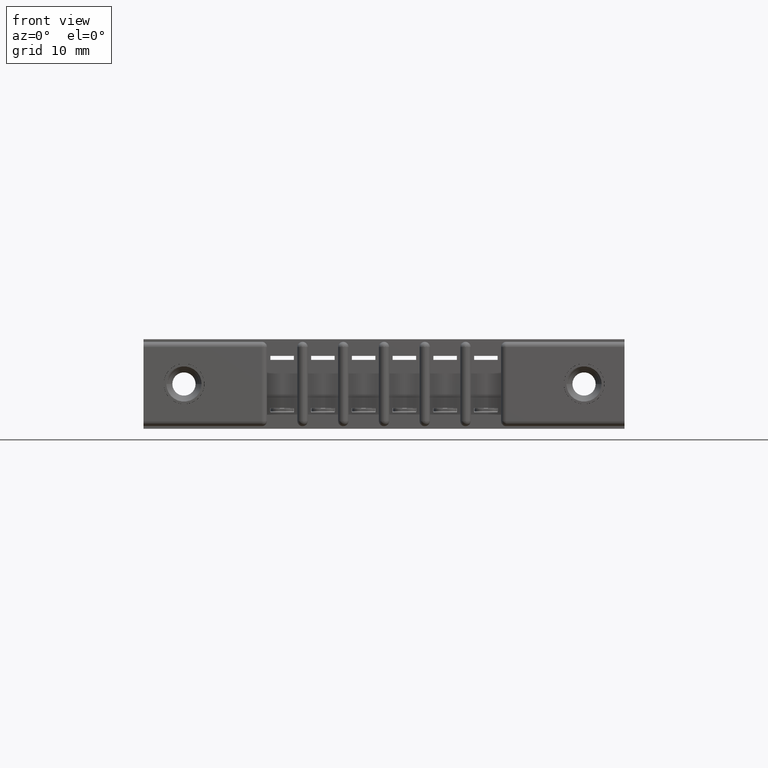
[diagram: clean part render]
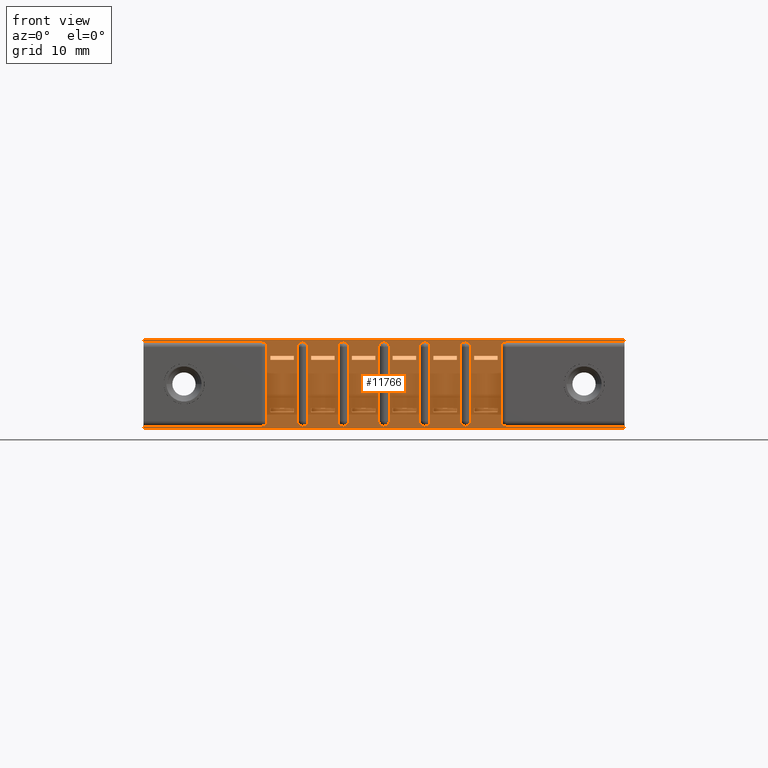
[diagram: same view with one face highlighted and labeled with its STEP entity id]
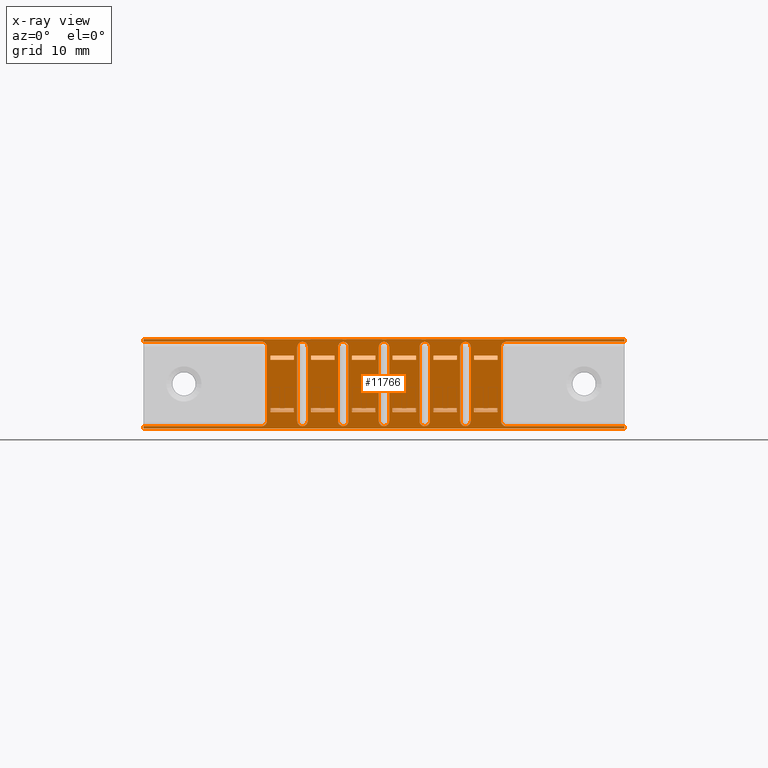
[diagram: x-ray of the same camera — body ghosted, the highlighted face saturated]
A machine part, front view. The second image highlights one B-rep face of the part: STEP entity #11766.
The next image is the same camera in x-ray: the body ghosted, the highlighted face saturated — about 0% of this face is hidden behind the body in this view.
In plain terms, the highlighted planar face has unit normal (0, 1, 0).
Its self-contained STEP definition (entity closure, byte-faithful):
#7 = ORIENTED_EDGE ( 'NONE', *, *, #4818, .T. ) ;
#30 = EDGE_CURVE ( 'NONE', #8263, #10654, #2794, .T. ) ;
#53 = ORIENTED_EDGE ( 'NONE', *, *, #9974, .F. ) ;
#56 = AXIS2_PLACEMENT_3D ( 'NONE', #10852, #10772, #778 ) ;
#74 = VERTEX_POINT ( 'NONE', #822 ) ;
#80 = VERTEX_POINT ( 'NONE', #3491 ) ;
#112 = CARTESIAN_POINT ( 'NONE',  ( 1.232999999999999700, 0.05099999999999999700, -0.3329999999999999600 ) ) ;
#133 = VERTEX_POINT ( 'NONE', #2409 ) ;
#159 = VECTOR ( 'NONE', #6698, 39.37007874015748100 ) ;
#173 = AXIS2_PLACEMENT_3D ( 'NONE', #6417, #6575, #909 ) ;
#174 = VECTOR ( 'NONE', #5992, 39.37007874015748100 ) ;
#191 = CARTESIAN_POINT ( 'NONE',  ( 1.200000000000000400, 0.05099999999999999700, -0.07900000000000009800 ) ) ;
#196 = FACE_BOUND ( 'NONE', #7737, .T. ) ;
#206 = LINE ( 'NONE', #6383, #1787 ) ;
#238 = ORIENTED_EDGE ( 'NONE', *, *, #5355, .T. ) ;
#261 = CARTESIAN_POINT ( 'NONE',  ( 0.7980000000000003800, 0.05099999999999999700, -0.07900000000000009800 ) ) ;
#281 = CARTESIAN_POINT ( 'NONE',  ( 1.356000000000000500, 0.05100000000000001800, -0.06399999999999989000 ) ) ;
#326 = DIRECTION ( 'NONE',  ( 1.000000000000000000, 0.0000000000000000000, 0.0000000000000000000 ) ) ;
#344 = ORIENTED_EDGE ( 'NONE', *, *, #4937, .F. ) ;
#347 = VERTEX_POINT ( 'NONE', #8597 ) ;
#348 = CARTESIAN_POINT ( 'NONE',  ( 0.8880000000000004600, 0.05099999999999999700, -0.2640000000000001200 ) ) ;
#375 = CARTESIAN_POINT ( 'NONE',  ( 0.9010000000000005800, 0.05099999999999999700, -0.3430000000000001400 ) ) ;
#392 = VECTOR ( 'NONE', #8124, 39.37007874015748100 ) ;
#396 = CARTESIAN_POINT ( 'NONE',  ( 0.7649999999999999000, 0.05099999999999999700, -0.3130000000000007200 ) ) ;
#415 = AXIS2_PLACEMENT_3D ( 'NONE', #5095, #9637, #5053 ) ;
#420 = CARTESIAN_POINT ( 'NONE',  ( 0.7320000000000004300, 0.05099999999999999700, -0.2640000000000001200 ) ) ;
#427 = CARTESIAN_POINT ( 'NONE',  ( 1.232999999999999700, 0.05099999999999999700, -0.3130000000000007200 ) ) ;
#429 = DIRECTION ( 'NONE',  ( -1.000000000000000000, 0.0000000000000000000, 1.897116662266849500E-016 ) ) ;
#453 = CARTESIAN_POINT ( 'NONE',  ( 0.5760000000000004000, 0.05099999999999999700, -0.06400000000000014000 ) ) ;
#491 = CARTESIAN_POINT ( 'NONE',  ( 1.110000000000000500, 0.05099999999999999700, -0.2790000000000001400 ) ) ;
#502 = CARTESIAN_POINT ( 'NONE',  ( 0.5760000000000004000, 0.05099999999999999700, -0.07900000000000009800 ) ) ;
#509 = DIRECTION ( 'NONE',  ( 0.0000000000000000000, 0.0000000000000000000, 1.000000000000000000 ) ) ;
#531 = CARTESIAN_POINT ( 'NONE',  ( 0.7320000000000004300, 0.05099999999999999700, -0.06400000000000014000 ) ) ;
#539 = VECTOR ( 'NONE', #5408, 39.37007874015748100 ) ;
#547 = LINE ( 'NONE', #5838, #5756 ) ;
#552 = CIRCLE ( 'NONE', #11771, 0.01999999999999924100 ) ;
#558 = CARTESIAN_POINT ( 'NONE',  ( 1.200000000000000400, 0.05099999999999999700, -0.2790000000000000800 ) ) ;
#563 = ORIENTED_EDGE ( 'NONE', *, *, #8171, .T. ) ;
#577 = VECTOR ( 'NONE', #10922, 39.37007874015748100 ) ;
#579 = CARTESIAN_POINT ( 'NONE',  ( 0.5760000000000004000, 0.05099999999999999700, -0.2790000000000001400 ) ) ;
#606 = EDGE_CURVE ( 'NONE', #8623, #2721, #5686, .T. ) ;
#610 = CIRCLE ( 'NONE', #2261, 0.01999999999999924100 ) ;
#622 = CARTESIAN_POINT ( 'NONE',  ( 1.232999999999999700, 0.05099999999999999700, -0.02999999999999930500 ) ) ;
#624 = LINE ( 'NONE', #7322, #4806 ) ;
#632 = FACE_BOUND ( 'NONE', #10209, .T. ) ;
#683 = CIRCLE ( 'NONE', #4127, 0.01999999999999924100 ) ;
#702 = VERTEX_POINT ( 'NONE', #9075 ) ;
#736 = DIRECTION ( 'NONE',  ( -0.0000000000000000000, -1.000000000000000000, 0.0000000000000000000 ) ) ;
#745 = ORIENTED_EDGE ( 'NONE', *, *, #5326, .F. ) ;
#773 = CARTESIAN_POINT ( 'NONE',  ( 0.6290000000000003400, 0.05099999999999999700, -0.3130000000000007200 ) ) ;
#778 = DIRECTION ( 'NONE',  ( 0.0000000000000000000, 0.0000000000000000000, 1.000000000000000000 ) ) ;
#822 = CARTESIAN_POINT ( 'NONE',  ( 0.6420000000000004600, 0.05099999999999999700, -0.06399999999999989000 ) ) ;
#829 = LINE ( 'NONE', #8462, #5743 ) ;
#848 = CARTESIAN_POINT ( 'NONE',  ( 1.056999999999999700, 0.05099999999999999700, -0.02999999999999927000 ) ) ;
#868 = VERTEX_POINT ( 'NONE', #5557 ) ;
#871 = LINE ( 'NONE', #2761, #9851 ) ;
#877 = EDGE_CURVE ( 'NONE', #4252, #1716, #7116, .T. ) ;
#883 = VECTOR ( 'NONE', #6453, 39.37007874015748100 ) ;
#888 = DIRECTION ( 'NONE',  ( 0.0000000000000000000, 0.0000000000000000000, -1.000000000000000000 ) ) ;
#897 = CARTESIAN_POINT ( 'NONE',  ( 0.7980000000000003800, 0.05099999999999999700, -0.2790000000000001400 ) ) ;
#909 = DIRECTION ( 'NONE',  ( 0.0000000000000000000, 0.0000000000000000000, 1.000000000000000000 ) ) ;
#931 = LINE ( 'NONE', #11858, #7148 ) ;
#971 = CARTESIAN_POINT ( 'NONE',  ( 0.0000000000000000000, 0.05099999999999999700, 0.0000000000000000000 ) ) ;
#995 = CARTESIAN_POINT ( 'NONE',  ( 0.6420000000000004600, 0.05099999999999999700, -0.07900000000000009800 ) ) ;
#1010 = CARTESIAN_POINT ( 'NONE',  ( 0.8880000000000004600, 0.05099999999999999700, -0.2790000000000000800 ) ) ;
#1032 = CARTESIAN_POINT ( 'NONE',  ( 0.6420000000000004600, 0.05099999999999999700, -0.06400000000000012600 ) ) ;
#1047 = DIRECTION ( 'NONE',  ( 0.0000000000000000000, 0.0000000000000000000, -1.000000000000000000 ) ) ;
#1053 = DIRECTION ( 'NONE',  ( 0.0000000000000000000, 0.0000000000000000000, -1.000000000000000000 ) ) ;
#1066 = CARTESIAN_POINT ( 'NONE',  ( 1.369000000000000400, 0.05099999999999999700, -0.03000000000000007200 ) ) ;
#1082 = CARTESIAN_POINT ( 'NONE',  ( 1.076999999999999700, 0.05099999999999999700, -0.3130000000000007200 ) ) ;
#1094 = VERTEX_POINT ( 'NONE', #4576 ) ;
#1103 = ORIENTED_EDGE ( 'NONE', *, *, #4552, .F. ) ;
#1163 = CARTESIAN_POINT ( 'NONE',  ( 0.4530000000000003500, 0.05099999999999999700, -0.01000000000000006400 ) ) ;
#1167 = DIRECTION ( 'NONE',  ( 0.0000000000000000000, 0.0000000000000000000, -1.000000000000000000 ) ) ;
#1205 = EDGE_CURVE ( 'NONE', #8051, #11214, #2473, .T. ) ;
#1211 = ORIENTED_EDGE ( 'NONE', *, *, #5078, .T. ) ;
#1215 = EDGE_CURVE ( 'NONE', #9059, #2859, #1324, .T. ) ;
#1237 = CARTESIAN_POINT ( 'NONE',  ( 0.4860000000000004300, 0.05099999999999999700, -0.2790000000000001400 ) ) ;
#1243 = EDGE_LOOP ( 'NONE', ( #7596, #7864, #8556, #3206 ) ) ;
#1266 = DIRECTION ( 'NONE',  ( 0.0000000000000000000, 0.0000000000000000000, -1.000000000000000000 ) ) ;
#1268 = CIRCLE ( 'NONE', #3631, 0.01999999999999924100 ) ;
#1283 = VECTOR ( 'NONE', #1266, 39.37007874015748100 ) ;
#1286 = ORIENTED_EDGE ( 'NONE', *, *, #10593, .F. ) ;
#1287 = CARTESIAN_POINT ( 'NONE',  ( 1.044000000000000500, 0.05099999999999999700, -0.07900000000000009800 ) ) ;
#1322 = VECTOR ( 'NONE', #6221, 39.37007874015748100 ) ;
#1324 = LINE ( 'NONE', #4685, #6248 ) ;
#1353 = ORIENTED_EDGE ( 'NONE', *, *, #2015, .F. ) ;
#1357 = FACE_BOUND ( 'NONE', #5174, .T. ) ;
#1370 = EDGE_LOOP ( 'NONE', ( #10367, #6402, #1286, #11614, #10536 ) ) ;
#1374 = EDGE_LOOP ( 'NONE', ( #8940, #7445, #2843, #10048, #8587 ) ) ;
#1378 = EDGE_CURVE ( 'NONE', #7162, #74, #6392, .T. ) ;
#1392 = ORIENTED_EDGE ( 'NONE', *, *, #2921, .F. ) ;
#1403 = DIRECTION ( 'NONE',  ( -1.000000000000000000, 0.0000000000000000000, 0.0000000000000000000 ) ) ;
#1423 = LINE ( 'NONE', #579, #6054 ) ;
#1428 = CARTESIAN_POINT ( 'NONE',  ( 1.200000000000000400, 0.05099999999999999700, -0.2640000000000001200 ) ) ;
#1437 = EDGE_CURVE ( 'NONE', #8565, #2018, #10456, .T. ) ;
#1466 = LINE ( 'NONE', #3647, #159 ) ;
#1499 = VERTEX_POINT ( 'NONE', #8442 ) ;
#1502 = EDGE_CURVE ( 'NONE', #5835, #7595, #8986, .T. ) ;
#1548 = CARTESIAN_POINT ( 'NONE',  ( 0.9009999999999998000, 0.05099999999999999700, -0.02999999999999927000 ) ) ;
#1561 = CARTESIAN_POINT ( 'NONE',  ( 1.096999999999999800, 0.05099999999999999700, -0.02999999999999927000 ) ) ;
#1569 = LINE ( 'NONE', #4558, #9221 ) ;
#1582 = VERTEX_POINT ( 'NONE', #6736 ) ;
#1592 = VERTEX_POINT ( 'NONE', #4985 ) ;
#1595 = LINE ( 'NONE', #1974, #9417 ) ;
#1662 = VERTEX_POINT ( 'NONE', #5260 ) ;
#1691 = DIRECTION ( 'NONE',  ( -1.000000000000000000, -0.0000000000000000000, -7.017285087388212900E-023 ) ) ;
#1702 = CARTESIAN_POINT ( 'NONE',  ( 1.110000000000000500, 0.05099999999999999700, -0.06400000000000012600 ) ) ;
#1716 = VERTEX_POINT ( 'NONE', #4034 ) ;
#1736 = ORIENTED_EDGE ( 'NONE', *, *, #10774, .F. ) ;
#1756 = DIRECTION ( 'NONE',  ( 0.0000000000000000000, 0.0000000000000000000, -1.000000000000000000 ) ) ;
#1760 = VERTEX_POINT ( 'NONE', #420 ) ;
#1763 = FACE_BOUND ( 'NONE', #2626, .T. ) ;
#1777 = AXIS2_PLACEMENT_3D ( 'NONE', #11327, #8571, #1167 ) ;
#1787 = VECTOR ( 'NONE', #1794, 39.37007874015748100 ) ;
#1794 = DIRECTION ( 'NONE',  ( -1.000000000000000000, 0.0000000000000000000, 0.0000000000000000000 ) ) ;
#1853 = CARTESIAN_POINT ( 'NONE',  ( 1.266000000000000500, 0.05099999999999999700, -0.06400000000000012600 ) ) ;
#1864 = VECTOR ( 'NONE', #1053, 39.37007874015748100 ) ;
#1877 = VECTOR ( 'NONE', #10311, 39.37007874015748100 ) ;
#1883 = CARTESIAN_POINT ( 'NONE',  ( 1.253000000000000300, 0.05099999999999999700, -0.3130000000000007200 ) ) ;
#1950 = DIRECTION ( 'NONE',  ( 0.0000000000000000000, 0.0000000000000000000, -1.000000000000000000 ) ) ;
#1955 = VERTEX_POINT ( 'NONE', #2025 ) ;
#1974 = CARTESIAN_POINT ( 'NONE',  ( 0.5760000000000004000, 0.05099999999999999700, -0.2790000000000001400 ) ) ;
#1983 = EDGE_CURVE ( 'NONE', #4721, #10619, #10574, .T. ) ;
#2014 = VERTEX_POINT ( 'NONE', #7493 ) ;
#2015 = EDGE_CURVE ( 'NONE', #347, #9955, #11167, .T. ) ;
#2017 = CARTESIAN_POINT ( 'NONE',  ( 0.9209999999999998200, 0.05099999999999999700, -0.3130000000000007200 ) ) ;
#2018 = VERTEX_POINT ( 'NONE', #10424 ) ;
#2020 = ORIENTED_EDGE ( 'NONE', *, *, #4255, .F. ) ;
#2025 = CARTESIAN_POINT ( 'NONE',  ( 0.7449999999999998800, 0.05099999999999999700, -0.02999999999999927000 ) ) ;
#2026 = VERTEX_POINT ( 'NONE', #1066 ) ;
#2049 = AXIS2_PLACEMENT_3D ( 'NONE', #427, #9578, #8717 ) ;
#2051 = CARTESIAN_POINT ( 'NONE',  ( 0.9540000000000004000, 0.05099999999999999700, -0.2790000000000001400 ) ) ;
#2052 = CARTESIAN_POINT ( 'NONE',  ( 0.7980000000000003800, 0.05099999999999999700, -0.06400000000000012600 ) ) ;
#2053 = CARTESIAN_POINT ( 'NONE',  ( 0.7320000000000004300, 0.05099999999999999700, -0.06399999999999989000 ) ) ;
#2071 = VECTOR ( 'NONE', #4437, 39.37007874015748100 ) ;
#2072 = VERTEX_POINT ( 'NONE', #10127 ) ;
#2082 = DIRECTION ( 'NONE',  ( 0.0000000000000000000, 0.0000000000000000000, -1.000000000000000000 ) ) ;
#2104 = LINE ( 'NONE', #10365, #3972 ) ;
#2199 = DIRECTION ( 'NONE',  ( 0.0000000000000000000, 0.0000000000000000000, 1.000000000000000000 ) ) ;
#2204 = CARTESIAN_POINT ( 'NONE',  ( 1.110000000000000500, 0.05099999999999999700, -0.07900000000000009800 ) ) ;
#2249 = DIRECTION ( 'NONE',  ( -0.0000000000000000000, -1.000000000000000000, 0.0000000000000000000 ) ) ;
#2261 = AXIS2_PLACEMENT_3D ( 'NONE', #6110, #736, #10722 ) ;
#2266 = VECTOR ( 'NONE', #888, 39.37007874015748100 ) ;
#2288 = CIRCLE ( 'NONE', #56, 0.01999999999999924100 ) ;
#2319 = LINE ( 'NONE', #4507, #7245 ) ;
#2331 = VECTOR ( 'NONE', #8002, 39.37007874015748100 ) ;
#2332 = ORIENTED_EDGE ( 'NONE', *, *, #5932, .F. ) ;
#2369 = CARTESIAN_POINT ( 'NONE',  ( 0.9409999999999997300, 0.05099999999999999700, -0.02999999999999927000 ) ) ;
#2371 = EDGE_CURVE ( 'NONE', #3713, #2874, #5047, .T. ) ;
#2388 = DIRECTION ( 'NONE',  ( 1.592914282019977800E-015, -0.0000000000000000000, -1.000000000000000000 ) ) ;
#2409 = CARTESIAN_POINT ( 'NONE',  ( 1.356000000000000500, 0.05100000000000001800, -0.06399999999999989000 ) ) ;
#2444 = VERTEX_POINT ( 'NONE', #7108 ) ;
#2463 = VECTOR ( 'NONE', #3831, 39.37007874015748100 ) ;
#2465 = EDGE_CURVE ( 'NONE', #5700, #5750, #8107, .T. ) ;
#2466 = ORIENTED_EDGE ( 'NONE', *, *, #3673, .F. ) ;
#2473 = LINE ( 'NONE', #7199, #5824 ) ;
#2486 = VECTOR ( 'NONE', #10980, 39.37007874015748100 ) ;
#2569 = EDGE_CURVE ( 'NONE', #11919, #3724, #3328, .T. ) ;
#2568 = CARTESIAN_POINT ( 'NONE',  ( 0.9540000000000004000, 0.05099999999999999700, -0.2640000000000001200 ) ) ;
#2570 = VECTOR ( 'NONE', #4352, 39.37007874015748100 ) ;
#2575 = ORIENTED_EDGE ( 'NONE', *, *, #30, .F. ) ;
#2585 = CARTESIAN_POINT ( 'NONE',  ( 1.044000000000000500, 0.05099999999999999700, -0.06399999999999989000 ) ) ;
#2590 = EDGE_CURVE ( 'NONE', #2444, #5319, #3625, .T. ) ;
#2608 = EDGE_CURVE ( 'NONE', #80, #5479, #8965, .T. ) ;
#2609 = VERTEX_POINT ( 'NONE', #4722 ) ;
#2619 = CARTESIAN_POINT ( 'NONE',  ( 0.5889999999999998600, 0.05099999999999999700, 8.140050701370326700E-024 ) ) ;
#2623 = LINE ( 'NONE', #10606, #174 ) ;
#2626 = EDGE_LOOP ( 'NONE', ( #11088, #3674, #10802, #344 ) ) ;
#2631 = LINE ( 'NONE', #10329, #6560 ) ;
#2659 = EDGE_CURVE ( 'NONE', #4875, #8565, #3748, .T. ) ;
#2688 = ORIENTED_EDGE ( 'NONE', *, *, #7640, .F. ) ;
#2689 = CARTESIAN_POINT ( 'NONE',  ( 1.842000000000000700, 0.05099999999999999700, -0.3330000000000001300 ) ) ;
#2692 = ORIENTED_EDGE ( 'NONE', *, *, #4383, .T. ) ;
#2709 = ORIENTED_EDGE ( 'NONE', *, *, #10736, .T. ) ;
#2721 = VERTEX_POINT ( 'NONE', #8032 ) ;
#2743 = CARTESIAN_POINT ( 'NONE',  ( 0.7320000000000004300, 0.05099999999999999700, -0.07900000000000009800 ) ) ;
#2745 = DIRECTION ( 'NONE',  ( -1.000000000000000000, 0.0000000000000000000, 1.897116662266849500E-016 ) ) ;
#2755 = DIRECTION ( 'NONE',  ( 1.000000000000000000, 0.0000000000000000000, 0.0000000000000000000 ) ) ;
#2761 = CARTESIAN_POINT ( 'NONE',  ( 0.4730000000000003600, 0.05099999999999999700, -0.3430000000000001400 ) ) ;
#2764 = CARTESIAN_POINT ( 'NONE',  ( 0.4530000000000003500, 0.05099999999999999700, -0.3330000000000001300 ) ) ;
#2793 = FACE_BOUND ( 'NONE', #9304, .T. ) ;
#2794 = CIRCLE ( 'NONE', #5578, 0.01999999999999924100 ) ;
#2843 = ORIENTED_EDGE ( 'NONE', *, *, #8012, .F. ) ;
#2859 = VERTEX_POINT ( 'NONE', #9408 ) ;
#2860 = CARTESIAN_POINT ( 'NONE',  ( 0.6420000000000004600, 0.05099999999999999700, -0.06400000000000012600 ) ) ;
#2874 = VERTEX_POINT ( 'NONE', #558 ) ;
#2921 = EDGE_CURVE ( 'NONE', #1662, #6533, #5777, .T. ) ;
#2922 = VERTEX_POINT ( 'NONE', #191 ) ;
#2925 = VECTOR ( 'NONE', #3005, 39.37007874015748100 ) ;
#2951 = LINE ( 'NONE', #1032, #9160 ) ;
#2953 = CARTESIAN_POINT ( 'NONE',  ( 0.9410000000000003900, 0.05099999999999999700, -0.3430000000000001400 ) ) ;
#2956 = DIRECTION ( 'NONE',  ( 0.0000000000000000000, 0.0000000000000000000, -1.000000000000000000 ) ) ;
#2966 = VECTOR ( 'NONE', #5737, 39.37007874015748100 ) ;
#2996 = ORIENTED_EDGE ( 'NONE', *, *, #11413, .F. ) ;
#3005 = DIRECTION ( 'NONE',  ( -0.0000000000000000000, 0.0000000000000000000, 1.000000000000000000 ) ) ;
#3008 = EDGE_CURVE ( 'NONE', #6291, #2014, #9086, .T. ) ;
#3023 = CARTESIAN_POINT ( 'NONE',  ( 0.7850000000000003600, 0.05099999999999999700, -0.3430000000000001400 ) ) ;
#3062 = VECTOR ( 'NONE', #6337, 39.37007874015748100 ) ;
#3076 = ORIENTED_EDGE ( 'NONE', *, *, #7967, .F. ) ;
#3110 = CIRCLE ( 'NONE', #3440, 0.01999999999999924100 ) ;
#3120 = VERTEX_POINT ( 'NONE', #9657 ) ;
#3148 = EDGE_LOOP ( 'NONE', ( #4805, #6822, #5850, #745 ) ) ;
#3157 = EDGE_CURVE ( 'NONE', #4414, #1094, #552, .T. ) ;
#3161 = CARTESIAN_POINT ( 'NONE',  ( 0.8880000000000004600, 0.05099999999999999700, -0.06400000000000014000 ) ) ;
#3199 = CARTESIAN_POINT ( 'NONE',  ( 0.0000000000000000000, 0.05099999999999999700, -0.3330000000000001300 ) ) ;
#3200 = CIRCLE ( 'NONE', #11157, 0.01999999999999924100 ) ;
#3206 = ORIENTED_EDGE ( 'NONE', *, *, #2371, .F. ) ;
#3246 = EDGE_CURVE ( 'NONE', #5319, #10863, #8095, .T. ) ;
#3248 = ORIENTED_EDGE ( 'NONE', *, *, #4100, .T. ) ;
#3249 = DIRECTION ( 'NONE',  ( -1.000000000000000000, 0.0000000000000000000, 1.897116662266849500E-016 ) ) ;
#3283 = ORIENTED_EDGE ( 'NONE', *, *, #1502, .F. ) ;
#3298 = CARTESIAN_POINT ( 'NONE',  ( 1.253000000000000300, 0.05099999999999999700, -0.3430000000000001400 ) ) ;
#3319 = DIRECTION ( 'NONE',  ( -0.0000000000000000000, 0.0000000000000000000, 1.000000000000000000 ) ) ;
#3328 = LINE ( 'NONE', #9357, #7368 ) ;
#3330 = DIRECTION ( 'NONE',  ( 1.000000000000000000, 0.0000000000000000000, 0.0000000000000000000 ) ) ;
#3347 = DIRECTION ( 'NONE',  ( 0.0000000000000000000, 0.0000000000000000000, -1.000000000000000000 ) ) ;
#3349 = CIRCLE ( 'NONE', #6028, 0.02000000000000005900 ) ;
#3381 = DIRECTION ( 'NONE',  ( -0.0000000000000000000, -1.000000000000000000, 0.0000000000000000000 ) ) ;
#3389 = VERTEX_POINT ( 'NONE', #11928 ) ;
#3394 = LINE ( 'NONE', #9159, #8030 ) ;
#3418 = ORIENTED_EDGE ( 'NONE', *, *, #11531, .F. ) ;
#3424 = LINE ( 'NONE', #9702, #8780 ) ;
#3440 = AXIS2_PLACEMENT_3D ( 'NONE', #10446, #6709, #4883 ) ;
#3468 = DIRECTION ( 'NONE',  ( -1.000000000000000000, 0.0000000000000000000, 0.0000000000000000000 ) ) ;
#3469 = VERTEX_POINT ( 'NONE', #5711 ) ;
#3491 = CARTESIAN_POINT ( 'NONE',  ( 0.9540000000000004000, 0.05099999999999999700, -0.06399999999999989000 ) ) ;
#3500 = EDGE_LOOP ( 'NONE', ( #2332, #2996, #5940, #4007 ) ) ;
#3506 = VECTOR ( 'NONE', #3249, 39.37007874015748100 ) ;
#3531 = FACE_BOUND ( 'NONE', #3500, .T. ) ;
#3538 = DIRECTION ( 'NONE',  ( -0.0000000000000000000, 0.0000000000000000000, 1.000000000000000000 ) ) ;
#3555 = DIRECTION ( 'NONE',  ( -0.0000000000000000000, 0.0000000000000000000, 1.000000000000000000 ) ) ;
#3618 = DIRECTION ( 'NONE',  ( -1.991142852524972300E-015, 0.0000000000000000000, 1.000000000000000000 ) ) ;
#3625 = LINE ( 'NONE', #2052, #1864 ) ;
#3631 = AXIS2_PLACEMENT_3D ( 'NONE', #11540, #9671, #5983 ) ;
#3645 = DIRECTION ( 'NONE',  ( -0.0000000000000000000, 0.0000000000000000000, 1.000000000000000000 ) ) ;
#3647 = CARTESIAN_POINT ( 'NONE',  ( 1.213000000000000500, 0.05099999999999999700, -0.3430000000000001400 ) ) ;
#3652 = AXIS2_PLACEMENT_3D ( 'NONE', #4003, #10477, #8763 ) ;
#3671 = LINE ( 'NONE', #6473, #8723 ) ;
#3673 = EDGE_CURVE ( 'NONE', #4820, #7055, #8670, .T. ) ;
#3674 = ORIENTED_EDGE ( 'NONE', *, *, #1215, .F. ) ;
#3686 = AXIS2_PLACEMENT_3D ( 'NONE', #2017, #11387, #4939 ) ;
#3695 = CIRCLE ( 'NONE', #6066, 0.01999999999999924100 ) ;
#3713 = VERTEX_POINT ( 'NONE', #491 ) ;
#3724 = VERTEX_POINT ( 'NONE', #6033 ) ;
#3748 = CIRCLE ( 'NONE', #7243, 0.02000000000000007000 ) ;
#3758 = ORIENTED_EDGE ( 'NONE', *, *, #10530, .F. ) ;
#3772 = EDGE_CURVE ( 'NONE', #5000, #4450, #1423, .T. ) ;
#3817 = ORIENTED_EDGE ( 'NONE', *, *, #9162, .F. ) ;
#3825 = ORIENTED_EDGE ( 'NONE', *, *, #1437, .T. ) ;
#3827 = DIRECTION ( 'NONE',  ( -1.000000000000000000, 0.0000000000000000000, 0.0000000000000000000 ) ) ;
#3831 = DIRECTION ( 'NONE',  ( 1.000000000000000000, 0.0000000000000000000, 0.0000000000000000000 ) ) ;
#3837 = DIRECTION ( 'NONE',  ( -0.0000000000000000000, -1.000000000000000000, 0.0000000000000000000 ) ) ;
#3851 = CARTESIAN_POINT ( 'NONE',  ( 0.9540000000000004000, 0.05099999999999999700, -0.06400000000000012600 ) ) ;
#3864 = EDGE_CURVE ( 'NONE', #9459, #4414, #5764, .T. ) ;
#3883 = EDGE_LOOP ( 'NONE', ( #10669, #3758, #1392, #2688 ) ) ;
#3924 = EDGE_CURVE ( 'NONE', #10072, #702, #10125, .T. ) ;
#3938 = EDGE_CURVE ( 'NONE', #10291, #10691, #2288, .T. ) ;
#3943 = VECTOR ( 'NONE', #6071, 39.37007874015748100 ) ;
#3972 = VECTOR ( 'NONE', #9253, 39.37007874015748100 ) ;
#3979 = ORIENTED_EDGE ( 'NONE', *, *, #4678, .T. ) ;
#4003 = CARTESIAN_POINT ( 'NONE',  ( 0.4530000000000003500, 0.05099999999999999700, -0.3130000000000000600 ) ) ;
#4007 = ORIENTED_EDGE ( 'NONE', *, *, #6602, .F. ) ;
#4013 = VERTEX_POINT ( 'NONE', #2585 ) ;
#4029 = CARTESIAN_POINT ( 'NONE',  ( 1.200000000000000400, 0.05099999999999999700, -0.06400000000000014000 ) ) ;
#4034 = CARTESIAN_POINT ( 'NONE',  ( 1.076999999999999700, 0.05099999999999999700, -0.3329999999999999600 ) ) ;
#4037 = LINE ( 'NONE', #7978, #10405 ) ;
#4066 = VECTOR ( 'NONE', #6597, 39.37007874015748100 ) ;
#4069 = EDGE_CURVE ( 'NONE', #9459, #1955, #1569, .T. ) ;
#4100 = EDGE_CURVE ( 'NONE', #8912, #3120, #8077, .T. ) ;
#4105 = ORIENTED_EDGE ( 'NONE', *, *, #5214, .F. ) ;
#4127 = AXIS2_PLACEMENT_3D ( 'NONE', #4237, #3381, #509 ) ;
#4197 = VERTEX_POINT ( 'NONE', #2051 ) ;
#4237 = CARTESIAN_POINT ( 'NONE',  ( 0.9209999999999998200, 0.05099999999999999700, -0.02999999999999930500 ) ) ;
#4252 = VERTEX_POINT ( 'NONE', #9470 ) ;
#4255 = EDGE_CURVE ( 'NONE', #9494, #4721, #829, .T. ) ;
#4309 = VECTOR ( 'NONE', #3319, 39.37007874015748100 ) ;
#4352 = DIRECTION ( 'NONE',  ( 1.000000000000000000, 0.0000000000000000000, 0.0000000000000000000 ) ) ;
#4354 = EDGE_CURVE ( 'NONE', #7614, #8180, #1268, .T. ) ;
#4364 = DIRECTION ( 'NONE',  ( -1.000000000000000000, 0.0000000000000000000, 1.897116662266849500E-016 ) ) ;
#4383 = EDGE_CURVE ( 'NONE', #3120, #4875, #8158, .T. ) ;
#4403 = DIRECTION ( 'NONE',  ( 0.0000000000000000000, 0.0000000000000000000, 1.000000000000000000 ) ) ;
#4414 = VERTEX_POINT ( 'NONE', #11580 ) ;
#4428 = CARTESIAN_POINT ( 'NONE',  ( 0.8880000000000004600, 0.05099999999999999700, -0.06400000000000014000 ) ) ;
#4437 = DIRECTION ( 'NONE',  ( 0.0000000000000000000, 0.0000000000000000000, -1.000000000000000000 ) ) ;
#4445 = DIRECTION ( 'NONE',  ( 0.0000000000000000000, 0.0000000000000000000, -1.000000000000000000 ) ) ;
#4450 = VERTEX_POINT ( 'NONE', #11657 ) ;
#4456 = ORIENTED_EDGE ( 'NONE', *, *, #3772, .F. ) ;
#4463 = VECTOR ( 'NONE', #1950, 39.37007874015748100 ) ;
#4501 = LINE ( 'NONE', #11667, #9872 ) ;
#4507 = CARTESIAN_POINT ( 'NONE',  ( 1.110000000000000500, 0.05099999999999999700, -0.07900000000000009800 ) ) ;
#4513 = FACE_BOUND ( 'NONE', #3883, .T. ) ;
#4529 = VECTOR ( 'NONE', #9496, 39.37007874015748100 ) ;
#4552 = EDGE_CURVE ( 'NONE', #5479, #10934, #6244, .T. ) ;
#4558 = CARTESIAN_POINT ( 'NONE',  ( 0.7450000000000005500, 0.05099999999999999700, -0.3430000000000001400 ) ) ;
#4566 = DIRECTION ( 'NONE',  ( -0.0000000000000000000, 0.0000000000000000000, 1.000000000000000000 ) ) ;
#4576 = CARTESIAN_POINT ( 'NONE',  ( 0.7850000000000002500, 0.05099999999999999700, -0.3130000000000007200 ) ) ;
#4583 = CARTESIAN_POINT ( 'NONE',  ( 0.7450000000000005500, 0.05099999999999999700, -0.3130000000000007200 ) ) ;
#4612 = EDGE_CURVE ( 'NONE', #10937, #2922, #2319, .T. ) ;
#4649 = VERTEX_POINT ( 'NONE', #2568 ) ;
#4669 = VERTEX_POINT ( 'NONE', #8250 ) ;
#4678 = EDGE_CURVE ( 'NONE', #4820, #4669, #8418, .T. ) ;
#4682 = ORIENTED_EDGE ( 'NONE', *, *, #9656, .T. ) ;
#4685 = CARTESIAN_POINT ( 'NONE',  ( 1.266000000000000500, 0.05099999999999999700, -0.07900000000000009800 ) ) ;
#4713 = DIRECTION ( 'NONE',  ( 0.0000000000000000000, 0.0000000000000000000, 1.000000000000000000 ) ) ;
#4721 = VERTEX_POINT ( 'NONE', #11036 ) ;
#4722 = CARTESIAN_POINT ( 'NONE',  ( 0.7849999999999997000, 0.05099999999999999700, -0.02999999999999927000 ) ) ;
#4792 = DIRECTION ( 'NONE',  ( -0.0000000000000000000, -1.000000000000000000, 0.0000000000000000000 ) ) ;
#4805 = ORIENTED_EDGE ( 'NONE', *, *, #11740, .F. ) ;
#4806 = VECTOR ( 'NONE', #11924, 39.37007874015748100 ) ;
#4818 = EDGE_CURVE ( 'NONE', #10091, #10654, #1466, .T. ) ;
#4820 = VERTEX_POINT ( 'NONE', #8405 ) ;
#4856 = CARTESIAN_POINT ( 'NONE',  ( 0.8880000000000004600, 0.05099999999999999700, -0.06399999999999989000 ) ) ;
#4875 = VERTEX_POINT ( 'NONE', #1163 ) ;
#4883 = DIRECTION ( 'NONE',  ( 0.0000000000000000000, 0.0000000000000000000, 1.000000000000000000 ) ) ;
#4892 = ORIENTED_EDGE ( 'NONE', *, *, #10309, .F. ) ;
#4903 = CARTESIAN_POINT ( 'NONE',  ( 1.369000000000000400, 0.05099999999999999700, -0.3130000000000000600 ) ) ;
#4923 = EDGE_CURVE ( 'NONE', #2609, #1955, #3200, .T. ) ;
#4937 = EDGE_CURVE ( 'NONE', #133, #8255, #7983, .T. ) ;
#4938 = CARTESIAN_POINT ( 'NONE',  ( 0.5760000000000004000, 0.05099999999999999700, -0.2790000000000001400 ) ) ;
#4939 = DIRECTION ( 'NONE',  ( 0.0000000000000000000, 0.0000000000000000000, 1.000000000000000000 ) ) ;
#4951 = CARTESIAN_POINT ( 'NONE',  ( 1.389000000000000500, 0.05099999999999999700, -0.3130000000000000600 ) ) ;
#4966 = LINE ( 'NONE', #3023, #4529 ) ;
#4985 = CARTESIAN_POINT ( 'NONE',  ( 1.266000000000000500, 0.05099999999999999700, -0.2790000000000001400 ) ) ;
#5000 = VERTEX_POINT ( 'NONE', #1237 ) ;
#5026 = EDGE_CURVE ( 'NONE', #4669, #6591, #3349, .T. ) ;
#5038 = VECTOR ( 'NONE', #9414, 39.37007874015748100 ) ;
#5046 = CARTESIAN_POINT ( 'NONE',  ( 0.0000000000000000000, 0.05099999999999999700, -0.01000000000000006400 ) ) ;
#5047 = LINE ( 'NONE', #4938, #5491 ) ;
#5053 = DIRECTION ( 'NONE',  ( 0.0000000000000000000, 0.0000000000000000000, 1.000000000000000000 ) ) ;
#5061 = CARTESIAN_POINT ( 'NONE',  ( 0.4729999999999999200, 0.05099999999999999700, -0.03000000000000008900 ) ) ;
#5078 = EDGE_CURVE ( 'NONE', #8263, #5719, #11750, .T. ) ;
#5095 = CARTESIAN_POINT ( 'NONE',  ( 1.232999999999999700, 0.05099999999999999700, -0.3130000000000007200 ) ) ;
#5111 = FACE_BOUND ( 'NONE', #1374, .T. ) ;
#5154 = ORIENTED_EDGE ( 'NONE', *, *, #5026, .T. ) ;
#5174 = EDGE_LOOP ( 'NONE', ( #8341, #3283, #3418, #7335 ) ) ;
#5198 = VERTEX_POINT ( 'NONE', #7994 ) ;
#5214 = EDGE_CURVE ( 'NONE', #10934, #4013, #11452, .T. ) ;
#5243 = VECTOR ( 'NONE', #3538, 39.37007874015748100 ) ;
#5248 = FACE_BOUND ( 'NONE', #5864, .T. ) ;
#5260 = CARTESIAN_POINT ( 'NONE',  ( 1.356000000000000500, 0.05100000000000001800, -0.2790000000000001400 ) ) ;
#5263 = LINE ( 'NONE', #8498, #9166 ) ;
#5300 = LINE ( 'NONE', #10865, #392 ) ;
#5319 = VERTEX_POINT ( 'NONE', #897 ) ;
#5326 = EDGE_CURVE ( 'NONE', #4197, #5700, #1595, .T. ) ;
#5327 = DIRECTION ( 'NONE',  ( 1.000000000000000000, 0.0000000000000000000, 0.0000000000000000000 ) ) ;
#5331 = CARTESIAN_POINT ( 'NONE',  ( 0.6420000000000004600, 0.05099999999999999700, -0.2790000000000001400 ) ) ;
#5355 = EDGE_CURVE ( 'NONE', #702, #7055, #871, .T. ) ;
#5362 = DIRECTION ( 'NONE',  ( -0.0000000000000000000, 0.0000000000000000000, 1.000000000000000000 ) ) ;
#5408 = DIRECTION ( 'NONE',  ( 1.000000000000000000, 0.0000000000000000000, 0.0000000000000000000 ) ) ;
#5479 = VERTEX_POINT ( 'NONE', #9436 ) ;
#5491 = VECTOR ( 'NONE', #11431, 39.37007874015748100 ) ;
#5492 = CARTESIAN_POINT ( 'NONE',  ( 1.044000000000000500, 0.05099999999999999700, -0.06400000000000014000 ) ) ;
#5517 = VERTEX_POINT ( 'NONE', #4856 ) ;
#5521 = DIRECTION ( 'NONE',  ( -1.000000000000000000, 0.0000000000000000000, 0.0000000000000000000 ) ) ;
#5525 = CARTESIAN_POINT ( 'NONE',  ( 0.5760000000000004000, 0.05099999999999999700, -0.2790000000000001400 ) ) ;
#5530 = CARTESIAN_POINT ( 'NONE',  ( 1.842000000000000700, 0.05099999999999999700, 0.0000000000000000000 ) ) ;
#5557 = CARTESIAN_POINT ( 'NONE',  ( 1.266000000000000500, 0.05099999999999999700, -0.2640000000000001200 ) ) ;
#5571 = CARTESIAN_POINT ( 'NONE',  ( 1.044000000000000500, 0.05099999999999999700, -0.2640000000000001200 ) ) ;
#5578 = AXIS2_PLACEMENT_3D ( 'NONE', #622, #7075, #10734 ) ;
#5589 = EDGE_CURVE ( 'NONE', #868, #1592, #10571, .T. ) ;
#5667 = DIRECTION ( 'NONE',  ( 1.000000000000000000, 0.0000000000000000000, 0.0000000000000000000 ) ) ;
#5686 = LINE ( 'NONE', #9783, #2331 ) ;
#5694 = DIRECTION ( 'NONE',  ( -1.000000000000000000, 0.0000000000000000000, 1.897116662266849500E-016 ) ) ;
#5700 = VERTEX_POINT ( 'NONE', #6079 ) ;
#5711 = CARTESIAN_POINT ( 'NONE',  ( 0.5760000000000004000, 0.05099999999999999700, -0.06400000000000008500 ) ) ;
#5719 = VERTEX_POINT ( 'NONE', #1883 ) ;
#5726 = DIRECTION ( 'NONE',  ( -0.0000000000000000000, 0.0000000000000000000, 1.000000000000000000 ) ) ;
#5737 = DIRECTION ( 'NONE',  ( 1.592914282019977800E-015, -0.0000000000000000000, -1.000000000000000000 ) ) ;
#5743 = VECTOR ( 'NONE', #2956, 39.37007874015748100 ) ;
#5750 = VERTEX_POINT ( 'NONE', #5571 ) ;
#5756 = VECTOR ( 'NONE', #5879, 39.37007874015748100 ) ;
#5764 = CIRCLE ( 'NONE', #6718, 0.01999999999999924100 ) ;
#5777 = LINE ( 'NONE', #281, #9548 ) ;
#5820 = ORIENTED_EDGE ( 'NONE', *, *, #3938, .F. ) ;
#5824 = VECTOR ( 'NONE', #3618, 39.37007874015748100 ) ;
#5835 = VERTEX_POINT ( 'NONE', #8369 ) ;
#5838 = CARTESIAN_POINT ( 'NONE',  ( 0.5760000000000004000, 0.05099999999999999700, -0.2790000000000001400 ) ) ;
#5850 = ORIENTED_EDGE ( 'NONE', *, *, #2465, .F. ) ;
#5852 = CARTESIAN_POINT ( 'NONE',  ( 0.5760000000000004000, 0.05099999999999999700, -0.06400000000000014000 ) ) ;
#5860 = VECTOR ( 'NONE', #1756, 39.37007874015748100 ) ;
#5864 = EDGE_LOOP ( 'NONE', ( #9602, #10931, #6219, #563, #5820 ) ) ;
#5868 = DIRECTION ( 'NONE',  ( 1.000000000000000000, 0.0000000000000000000, 0.0000000000000000000 ) ) ;
#5876 = CARTESIAN_POINT ( 'NONE',  ( 0.6089999999999998700, 0.05099999999999999700, -0.3329999999999999600 ) ) ;
#5879 = DIRECTION ( 'NONE',  ( 1.000000000000000000, 0.0000000000000000000, 0.0000000000000000000 ) ) ;
#5881 = EDGE_LOOP ( 'NONE', ( #11528, #9210, #6141, #4682, #6269 ) ) ;
#5894 = DIRECTION ( 'NONE',  ( -0.0000000000000000000, 1.000000000000000000, -0.0000000000000000000 ) ) ;
#5913 = EDGE_CURVE ( 'NONE', #3389, #5000, #8677, .T. ) ;
#5932 = EDGE_CURVE ( 'NONE', #1582, #7355, #9689, .T. ) ;
#5934 = VECTOR ( 'NONE', #4566, 39.37007874015748100 ) ;
#5940 = ORIENTED_EDGE ( 'NONE', *, *, #10468, .F. ) ;
#5966 = VECTOR ( 'NONE', #7941, 39.37007874015748100 ) ;
#5971 = VECTOR ( 'NONE', #1047, 39.37007874015748100 ) ;
#5983 = DIRECTION ( 'NONE',  ( 0.0000000000000000000, 0.0000000000000000000, 1.000000000000000000 ) ) ;
#5992 = DIRECTION ( 'NONE',  ( -1.991142852524972300E-015, 0.0000000000000000000, 1.000000000000000000 ) ) ;
#6028 = AXIS2_PLACEMENT_3D ( 'NONE', #4951, #5894, #6819 ) ;
#6033 = CARTESIAN_POINT ( 'NONE',  ( 1.389000000000000500, 0.05099999999999999700, -0.01000000000000006400 ) ) ;
#6054 = VECTOR ( 'NONE', #3330, 39.37007874015748100 ) ;
#6066 = AXIS2_PLACEMENT_3D ( 'NONE', #7812, #2249, #9556 ) ;
#6071 = DIRECTION ( 'NONE',  ( -1.991142852524972300E-015, 0.0000000000000000000, 1.000000000000000000 ) ) ;
#6079 = CARTESIAN_POINT ( 'NONE',  ( 1.044000000000000500, 0.05099999999999999700, -0.2790000000000000800 ) ) ;
#6103 = LINE ( 'NONE', #11627, #5966 ) ;
#6106 = EDGE_CURVE ( 'NONE', #6433, #2018, #11438, .T. ) ;
#6110 = CARTESIAN_POINT ( 'NONE',  ( 1.076999999999999700, 0.05099999999999999700, -0.02999999999999930500 ) ) ;
#6111 = ORIENTED_EDGE ( 'NONE', *, *, #10425, .F. ) ;
#6121 = LINE ( 'NONE', #1853, #5971 ) ;
#6141 = ORIENTED_EDGE ( 'NONE', *, *, #4923, .F. ) ;
#6150 = EDGE_LOOP ( 'NONE', ( #8141, #3076, #11124, #11746 ) ) ;
#6193 = DIRECTION ( 'NONE',  ( -0.0000000000000000000, -1.000000000000000000, 0.0000000000000000000 ) ) ;
#6219 = ORIENTED_EDGE ( 'NONE', *, *, #9133, .F. ) ;
#6221 = DIRECTION ( 'NONE',  ( 1.000000000000000000, 0.0000000000000000000, 0.0000000000000000000 ) ) ;
#6244 = LINE ( 'NONE', #8970, #1322 ) ;
#6248 = VECTOR ( 'NONE', #2755, 39.37007874015748100 ) ;
#6264 = CIRCLE ( 'NONE', #3686, 0.01999999999999924100 ) ;
#6269 = ORIENTED_EDGE ( 'NONE', *, *, #3157, .F. ) ;
#6291 = VERTEX_POINT ( 'NONE', #1561 ) ;
#6294 = ORIENTED_EDGE ( 'NONE', *, *, #2608, .F. ) ;
#6312 = ORIENTED_EDGE ( 'NONE', *, *, #4612, .F. ) ;
#6323 = CARTESIAN_POINT ( 'NONE',  ( 0.5760000000000004000, 0.05099999999999999700, -0.06400000000000014000 ) ) ;
#6337 = DIRECTION ( 'NONE',  ( 1.592914282019977800E-015, -0.0000000000000000000, -1.000000000000000000 ) ) ;
#6350 = CARTESIAN_POINT ( 'NONE',  ( 0.9010000000000004700, 0.05099999999999999700, -0.3130000000000007200 ) ) ;
#6372 = CARTESIAN_POINT ( 'NONE',  ( 1.083812417245411700E-017, 0.05099999999999999700, -0.3330000000000001300 ) ) ;
#6383 = CARTESIAN_POINT ( 'NONE',  ( 0.6420000000000004600, 0.05099999999999999700, -0.2640000000000001200 ) ) ;
#6385 = CARTESIAN_POINT ( 'NONE',  ( 0.7320000000000004300, 0.05099999999999999700, -0.06400000000000014000 ) ) ;
#6392 = LINE ( 'NONE', #9121, #883 ) ;
#6402 = ORIENTED_EDGE ( 'NONE', *, *, #10495, .T. ) ;
#6417 = CARTESIAN_POINT ( 'NONE',  ( 1.076999999999999700, 0.05099999999999999700, -0.3130000000000007200 ) ) ;
#6421 = FACE_OUTER_BOUND ( 'NONE', #10129, .T. ) ;
#6431 = CARTESIAN_POINT ( 'NONE',  ( 0.8880000000000004600, 0.05099999999999999700, -0.07900000000000009800 ) ) ;
#6433 = VERTEX_POINT ( 'NONE', #2764 ) ;
#6453 = DIRECTION ( 'NONE',  ( -1.000000000000000000, 0.0000000000000000000, 1.897116662266849500E-016 ) ) ;
#6473 = CARTESIAN_POINT ( 'NONE',  ( 0.4729999999999998600, 0.05099999999999999700, 0.0000000000000000000 ) ) ;
#6511 = ORIENTED_EDGE ( 'NONE', *, *, #11168, .F. ) ;
#6533 = VERTEX_POINT ( 'NONE', #8347 ) ;
#6541 = DIRECTION ( 'NONE',  ( -1.000000000000000000, 0.0000000000000000000, 0.0000000000000000000 ) ) ;
#6560 = VECTOR ( 'NONE', #2745, 39.37007874015748100 ) ;
#6568 = DIRECTION ( 'NONE',  ( 1.000000000000000000, 0.0000000000000000000, 0.0000000000000000000 ) ) ;
#6575 = DIRECTION ( 'NONE',  ( -0.0000000000000000000, -1.000000000000000000, 0.0000000000000000000 ) ) ;
#6591 = VERTEX_POINT ( 'NONE', #4903 ) ;
#6597 = DIRECTION ( 'NONE',  ( 0.0000000000000000000, 0.0000000000000000000, -1.000000000000000000 ) ) ;
#6602 = EDGE_CURVE ( 'NONE', #7355, #7855, #547, .T. ) ;
#6684 = VECTOR ( 'NONE', #11548, 39.37007874015748100 ) ;
#6698 = DIRECTION ( 'NONE',  ( -1.991142852524972300E-015, 0.0000000000000000000, 1.000000000000000000 ) ) ;
#6707 = CARTESIAN_POINT ( 'NONE',  ( 1.252999999999999700, 0.05099999999999999700, -0.02999999999999927000 ) ) ;
#6709 = DIRECTION ( 'NONE',  ( -0.0000000000000000000, -1.000000000000000000, 0.0000000000000000000 ) ) ;
#6715 = VECTOR ( 'NONE', #8684, 39.37007874015748100 ) ;
#6718 = AXIS2_PLACEMENT_3D ( 'NONE', #7946, #6193, #9056 ) ;
#6722 = VECTOR ( 'NONE', #3468, 39.37007874015748100 ) ;
#6732 = ORIENTED_EDGE ( 'NONE', *, *, #3924, .T. ) ;
#6736 = CARTESIAN_POINT ( 'NONE',  ( 0.6420000000000004600, 0.05099999999999999700, -0.2640000000000001200 ) ) ;
#6767 = ORIENTED_EDGE ( 'NONE', *, *, #6106, .F. ) ;
#6819 = DIRECTION ( 'NONE',  ( 0.0000000000000000000, 0.0000000000000000000, -1.000000000000000000 ) ) ;
#6822 = ORIENTED_EDGE ( 'NONE', *, *, #9516, .F. ) ;
#6850 = CARTESIAN_POINT ( 'NONE',  ( 1.356000000000000500, 0.05100000000000001800, -0.06399999999999989000 ) ) ;
#6859 = LINE ( 'NONE', #6385, #7281 ) ;
#6916 = VECTOR ( 'NONE', #2082, 39.37007874015748100 ) ;
#6966 = EDGE_LOOP ( 'NONE', ( #11117, #7, #2575, #1211, #9038 ) ) ;
#6982 = CIRCLE ( 'NONE', #2049, 0.01999999999999924100 ) ;
#7055 = VERTEX_POINT ( 'NONE', #9385 ) ;
#7065 = CARTESIAN_POINT ( 'NONE',  ( 0.9540000000000004000, 0.05099999999999999700, -0.06400000000000012600 ) ) ;
#7075 = DIRECTION ( 'NONE',  ( -0.0000000000000000000, -1.000000000000000000, 0.0000000000000000000 ) ) ;
#7108 = CARTESIAN_POINT ( 'NONE',  ( 0.7980000000000003800, 0.05099999999999999700, -0.2640000000000001200 ) ) ;
#7116 = CIRCLE ( 'NONE', #173, 0.01999999999999924100 ) ;
#7148 = VECTOR ( 'NONE', #5362, 39.37007874015748100 ) ;
#7162 = VERTEX_POINT ( 'NONE', #2053 ) ;
#7199 = CARTESIAN_POINT ( 'NONE',  ( 0.5890000000000005200, 0.05099999999999999700, -0.3430000000000001400 ) ) ;
#7243 = AXIS2_PLACEMENT_3D ( 'NONE', #10787, #8873, #3347 ) ;
#7244 = AXIS2_PLACEMENT_3D ( 'NONE', #2619, #8015, #4403 ) ;
#7245 = VECTOR ( 'NONE', #5327, 39.37007874015748100 ) ;
#7278 = FACE_BOUND ( 'NONE', #3148, .T. ) ;
#7281 = VECTOR ( 'NONE', #3645, 39.37007874015748100 ) ;
#7301 = EDGE_CURVE ( 'NONE', #10619, #5517, #11116, .T. ) ;
#7304 = VERTEX_POINT ( 'NONE', #2369 ) ;
#7322 = CARTESIAN_POINT ( 'NONE',  ( 0.5760000000000004000, 0.05099999999999999700, -0.06400000000000014000 ) ) ;
#7325 = VERTEX_POINT ( 'NONE', #10598 ) ;
#7335 = ORIENTED_EDGE ( 'NONE', *, *, #1378, .F. ) ;
#7355 = VERTEX_POINT ( 'NONE', #5331 ) ;
#7368 = VECTOR ( 'NONE', #3827, 39.37007874015748100 ) ;
#7383 = CARTESIAN_POINT ( 'NONE',  ( 0.4730000000000003600, 0.05099999999999999700, -0.3430000000000001400 ) ) ;
#7387 = CARTESIAN_POINT ( 'NONE',  ( 1.110000000000000500, 0.05099999999999999700, -0.06400000000000012600 ) ) ;
#7432 = EDGE_CURVE ( 'NONE', #5517, #9494, #4037, .T. ) ;
#7445 = ORIENTED_EDGE ( 'NONE', *, *, #10396, .T. ) ;
#7493 = CARTESIAN_POINT ( 'NONE',  ( 1.097000000000000400, 0.05099999999999999700, -0.3130000000000007200 ) ) ;
#7509 = CARTESIAN_POINT ( 'NONE',  ( 0.4860000000000004300, 0.05099999999999999700, -0.06400000000000012600 ) ) ;
#7547 = DIRECTION ( 'NONE',  ( 0.0000000000000000000, 0.0000000000000000000, 1.000000000000000000 ) ) ;
#7554 = LINE ( 'NONE', #531, #6684 ) ;
#7560 = ORIENTED_EDGE ( 'NONE', *, *, #7432, .F. ) ;
#7595 = VERTEX_POINT ( 'NONE', #2743 ) ;
#7596 = ORIENTED_EDGE ( 'NONE', *, *, #10059, .F. ) ;
#7601 = CARTESIAN_POINT ( 'NONE',  ( 0.0000000000000000000, 0.05099999999999999700, 0.0000000000000000000 ) ) ;
#7614 = VERTEX_POINT ( 'NONE', #6350 ) ;
#7640 = EDGE_CURVE ( 'NONE', #1592, #1662, #9668, .T. ) ;
#7715 = EDGE_CURVE ( 'NONE', #1716, #2014, #9802, .T. ) ;
#7737 = EDGE_LOOP ( 'NONE', ( #11714, #1353, #9679, #6111 ) ) ;
#7748 = CARTESIAN_POINT ( 'NONE',  ( 1.842000000000000700, 0.05099999999999999700, 0.0000000000000000000 ) ) ;
#7751 = LINE ( 'NONE', #10954, #6722 ) ;
#7754 = VERTEX_POINT ( 'NONE', #112 ) ;
#7812 = CARTESIAN_POINT ( 'NONE',  ( 0.6089999999999998700, 0.05099999999999999700, -0.02999999999999930500 ) ) ;
#7824 = CARTESIAN_POINT ( 'NONE',  ( 0.5760000000000004000, 0.05099999999999999700, -0.2640000000000001200 ) ) ;
#7826 = ORIENTED_EDGE ( 'NONE', *, *, #10668, .F. ) ;
#7855 = VERTEX_POINT ( 'NONE', #11365 ) ;
#7864 = ORIENTED_EDGE ( 'NONE', *, *, #606, .F. ) ;
#7868 = FACE_BOUND ( 'NONE', #8600, .T. ) ;
#7889 = EDGE_CURVE ( 'NONE', #3724, #2026, #11835, .T. ) ;
#7891 = ORIENTED_EDGE ( 'NONE', *, *, #9475, .F. ) ;
#7919 = DIRECTION ( 'NONE',  ( -0.0000000000000000000, -1.000000000000000000, 0.0000000000000000000 ) ) ;
#7941 = DIRECTION ( 'NONE',  ( -1.991142852524972300E-015, 0.0000000000000000000, 1.000000000000000000 ) ) ;
#7946 = CARTESIAN_POINT ( 'NONE',  ( 0.7649999999999999000, 0.05099999999999999700, -0.3130000000000007200 ) ) ;
#7967 = EDGE_CURVE ( 'NONE', #9790, #2444, #3424, .T. ) ;
#7978 = CARTESIAN_POINT ( 'NONE',  ( 0.5760000000000004000, 0.05099999999999999700, -0.06400000000000014000 ) ) ;
#7983 = LINE ( 'NONE', #5852, #8271 ) ;
#7994 = CARTESIAN_POINT ( 'NONE',  ( 1.842000000000000700, 0.05099999999999999700, 0.0000000000000000000 ) ) ;
#8002 = DIRECTION ( 'NONE',  ( -1.000000000000000000, 0.0000000000000000000, 0.0000000000000000000 ) ) ;
#8012 = EDGE_CURVE ( 'NONE', #7304, #8654, #683, .T. ) ;
#8014 = FACE_BOUND ( 'NONE', #1370, .T. ) ;
#8015 = DIRECTION ( 'NONE',  ( 0.0000000000000000000, 1.000000000000000000, -0.0000000000000000000 ) ) ;
#8030 = VECTOR ( 'NONE', #5521, 39.37007874015748100 ) ;
#8032 = CARTESIAN_POINT ( 'NONE',  ( 1.110000000000000500, 0.05099999999999999700, -0.2640000000000001200 ) ) ;
#8051 = VERTEX_POINT ( 'NONE', #8838 ) ;
#8077 = LINE ( 'NONE', #971, #2266 ) ;
#8095 = LINE ( 'NONE', #10786, #2570 ) ;
#8107 = LINE ( 'NONE', #5492, #577 ) ;
#8124 = DIRECTION ( 'NONE',  ( 1.592914282019977800E-015, -0.0000000000000000000, -1.000000000000000000 ) ) ;
#8141 = ORIENTED_EDGE ( 'NONE', *, *, #2590, .F. ) ;
#8147 = CARTESIAN_POINT ( 'NONE',  ( 0.0000000000000000000, 0.05099999999999999700, 0.0000000000000000000 ) ) ;
#8158 = LINE ( 'NONE', #5046, #10603 ) ;
#8171 = EDGE_CURVE ( 'NONE', #1499, #10691, #5300, .T. ) ;
#8179 = LINE ( 'NONE', #2953, #2966 ) ;
#8180 = VERTEX_POINT ( 'NONE', #10944 ) ;
#8219 = CARTESIAN_POINT ( 'NONE',  ( 1.212999999999999900, 0.05099999999999999700, -0.02999999999999927000 ) ) ;
#8221 = DIRECTION ( 'NONE',  ( -1.991142852524972300E-015, 0.0000000000000000000, 1.000000000000000000 ) ) ;
#8250 = CARTESIAN_POINT ( 'NONE',  ( 1.389000000000000500, 0.05099999999999999700, -0.3330000000000001300 ) ) ;
#8255 = VERTEX_POINT ( 'NONE', #11966 ) ;
#8263 = VERTEX_POINT ( 'NONE', #6707 ) ;
#8271 = VECTOR ( 'NONE', #429, 39.37007874015748100 ) ;
#8282 = LINE ( 'NONE', #375, #3943 ) ;
#8341 = ORIENTED_EDGE ( 'NONE', *, *, #9440, .F. ) ;
#8347 = CARTESIAN_POINT ( 'NONE',  ( 1.356000000000000300, 0.05099999999999999700, -0.2640000000000001200 ) ) ;
#8369 = CARTESIAN_POINT ( 'NONE',  ( 0.6420000000000004600, 0.05099999999999999700, -0.07900000000000009800 ) ) ;
#8405 = CARTESIAN_POINT ( 'NONE',  ( 1.842000000000000700, 0.05099999999999999700, -0.3330000000000001300 ) ) ;
#8418 = LINE ( 'NONE', #2689, #10025 ) ;
#8428 = LINE ( 'NONE', #453, #3506 ) ;
#8442 = CARTESIAN_POINT ( 'NONE',  ( 0.6289999999999997800, 0.05099999999999999700, -0.02999999999999927000 ) ) ;
#8462 = CARTESIAN_POINT ( 'NONE',  ( 0.7980000000000003800, 0.05099999999999999700, -0.06400000000000012600 ) ) ;
#8471 = VECTOR ( 'NONE', #326, 39.37007874015748100 ) ;
#8480 = EDGE_LOOP ( 'NONE', ( #9939, #6511, #53, #4456 ) ) ;
#8498 = CARTESIAN_POINT ( 'NONE',  ( 0.5760000000000004000, 0.05099999999999999700, -0.06400000000000014000 ) ) ;
#8536 = AXIS2_PLACEMENT_3D ( 'NONE', #1082, #3837, #4713 ) ;
#8556 = ORIENTED_EDGE ( 'NONE', *, *, #11150, .F. ) ;
#8565 = VERTEX_POINT ( 'NONE', #5061 ) ;
#8571 = DIRECTION ( 'NONE',  ( 0.0000000000000000000, -1.000000000000000000, 0.0000000000000000000 ) ) ;
#8587 = ORIENTED_EDGE ( 'NONE', *, *, #10219, .F. ) ;
#8597 = CARTESIAN_POINT ( 'NONE',  ( 0.4860000000000004300, 0.05099999999999999700, -0.07900000000000009800 ) ) ;
#8600 = EDGE_LOOP ( 'NONE', ( #4892, #6312, #7891, #1736 ) ) ;
#8623 = VERTEX_POINT ( 'NONE', #1428 ) ;
#8654 = VERTEX_POINT ( 'NONE', #1548 ) ;
#8670 = LINE ( 'NONE', #7748, #1283 ) ;
#8677 = LINE ( 'NONE', #7509, #6916 ) ;
#8682 = CARTESIAN_POINT ( 'NONE',  ( 0.4860000000000004300, 0.05099999999999999700, -0.06400000000000008500 ) ) ;
#8684 = DIRECTION ( 'NONE',  ( -0.0000000000000000000, 0.0000000000000000000, 1.000000000000000000 ) ) ;
#8717 = DIRECTION ( 'NONE',  ( 0.0000000000000000000, 0.0000000000000000000, 1.000000000000000000 ) ) ;
#8723 = VECTOR ( 'NONE', #1691, 39.37007874015748100 ) ;
#8730 = VERTEX_POINT ( 'NONE', #848 ) ;
#8746 = LINE ( 'NONE', #7387, #5860 ) ;
#8763 = DIRECTION ( 'NONE',  ( 0.0000000000000000000, 0.0000000000000000000, -1.000000000000000000 ) ) ;
#8780 = VECTOR ( 'NONE', #1403, 39.37007874015748100 ) ;
#8838 = CARTESIAN_POINT ( 'NONE',  ( 0.5890000000000004100, 0.05099999999999999700, -0.3130000000000007200 ) ) ;
#8863 = LINE ( 'NONE', #1702, #2486 ) ;
#8870 = FACE_BOUND ( 'NONE', #5881, .T. ) ;
#8873 = DIRECTION ( 'NONE',  ( -0.0000000000000000000, 1.000000000000000000, -0.0000000000000000000 ) ) ;
#8888 = ORIENTED_EDGE ( 'NONE', *, *, #2569, .F. ) ;
#8912 = VERTEX_POINT ( 'NONE', #7601 ) ;
#8922 = CARTESIAN_POINT ( 'NONE',  ( 0.5889999999999999700, 0.05099999999999999700, -0.02999999999999927000 ) ) ;
#8936 = DIRECTION ( 'NONE',  ( -1.000000000000000000, 0.0000000000000000000, 0.0000000000000000000 ) ) ;
#8940 = ORIENTED_EDGE ( 'NONE', *, *, #4354, .F. ) ;
#8962 = EDGE_CURVE ( 'NONE', #7304, #9812, #8179, .T. ) ;
#8965 = LINE ( 'NONE', #3851, #4066 ) ;
#8970 = CARTESIAN_POINT ( 'NONE',  ( 0.9540000000000004000, 0.05099999999999999700, -0.07900000000000009800 ) ) ;
#8976 = ORIENTED_EDGE ( 'NONE', *, *, #11847, .F. ) ;
#8986 = LINE ( 'NONE', #995, #2463 ) ;
#9023 = ORIENTED_EDGE ( 'NONE', *, *, #7889, .F. ) ;
#9038 = ORIENTED_EDGE ( 'NONE', *, *, #10449, .F. ) ;
#9056 = DIRECTION ( 'NONE',  ( 0.0000000000000000000, 0.0000000000000000000, 1.000000000000000000 ) ) ;
#9059 = VERTEX_POINT ( 'NONE', #10487 ) ;
#9075 = CARTESIAN_POINT ( 'NONE',  ( 0.0000000000000000000, 0.05099999999999999700, -0.3430000000000000300 ) ) ;
#9086 = LINE ( 'NONE', #10481, #5038 ) ;
#9104 = VECTOR ( 'NONE', #11676, 39.37007874015748100 ) ;
#9121 = CARTESIAN_POINT ( 'NONE',  ( 0.5760000000000004000, 0.05099999999999999700, -0.06400000000000014000 ) ) ;
#9133 = EDGE_CURVE ( 'NONE', #1499, #11214, #3695, .T. ) ;
#9138 = CIRCLE ( 'NONE', #415, 0.01999999999999924100 ) ;
#9145 = CARTESIAN_POINT ( 'NONE',  ( 1.044000000000000500, 0.05099999999999999700, -0.06400000000000014000 ) ) ;
#9159 = CARTESIAN_POINT ( 'NONE',  ( 0.9540000000000004000, 0.05099999999999999700, -0.2640000000000001200 ) ) ;
#9160 = VECTOR ( 'NONE', #11359, 39.37007874015748100 ) ;
#9162 = EDGE_CURVE ( 'NONE', #10072, #6433, #10930, .T. ) ;
#9166 = VECTOR ( 'NONE', #5694, 39.37007874015748100 ) ;
#9210 = ORIENTED_EDGE ( 'NONE', *, *, #4069, .T. ) ;
#9218 = VECTOR ( 'NONE', #11914, 39.37007874015748100 ) ;
#9221 = VECTOR ( 'NONE', #8221, 39.37007874015748100 ) ;
#9243 = ORIENTED_EDGE ( 'NONE', *, *, #2659, .T. ) ;
#9253 = DIRECTION ( 'NONE',  ( 0.0000000000000000000, 0.0000000000000000000, -1.000000000000000000 ) ) ;
#9293 = EDGE_CURVE ( 'NONE', #10863, #9790, #9623, .T. ) ;
#9304 = EDGE_LOOP ( 'NONE', ( #4105, #1103, #6294, #8976 ) ) ;
#9331 = CARTESIAN_POINT ( 'NONE',  ( 1.842000000000000700, 0.05099999999999999700, -0.01000000000000006400 ) ) ;
#9357 = CARTESIAN_POINT ( 'NONE',  ( 1.842000000000000700, 0.05099999999999999700, -0.01000000000000006400 ) ) ;
#9385 = CARTESIAN_POINT ( 'NONE',  ( 1.842000000000000700, 0.05099999999999999700, -0.3430000000000000300 ) ) ;
#9408 = CARTESIAN_POINT ( 'NONE',  ( 1.356000000000000300, 0.05099999999999999700, -0.07900000000000009800 ) ) ;
#9414 = DIRECTION ( 'NONE',  ( 1.592914282019977800E-015, -0.0000000000000000000, -1.000000000000000000 ) ) ;
#9417 = VECTOR ( 'NONE', #6568, 39.37007874015748100 ) ;
#9436 = CARTESIAN_POINT ( 'NONE',  ( 0.9540000000000004000, 0.05099999999999999700, -0.07900000000000009800 ) ) ;
#9440 = EDGE_CURVE ( 'NONE', #7595, #7162, #6859, .T. ) ;
#9459 = VERTEX_POINT ( 'NONE', #4583 ) ;
#9470 = CARTESIAN_POINT ( 'NONE',  ( 1.057000000000000600, 0.05099999999999999700, -0.3130000000000007200 ) ) ;
#9475 = EDGE_CURVE ( 'NONE', #7325, #10937, #8746, .T. ) ;
#9494 = VERTEX_POINT ( 'NONE', #10237 ) ;
#9496 = DIRECTION ( 'NONE',  ( 1.592914282019977800E-015, -0.0000000000000000000, -1.000000000000000000 ) ) ;
#9516 = EDGE_CURVE ( 'NONE', #5750, #4649, #3394, .T. ) ;
#9548 = VECTOR ( 'NONE', #5726, 39.37007874015748100 ) ;
#9556 = DIRECTION ( 'NONE',  ( 0.0000000000000000000, 0.0000000000000000000, 1.000000000000000000 ) ) ;
#9578 = DIRECTION ( 'NONE',  ( -0.0000000000000000000, -1.000000000000000000, 0.0000000000000000000 ) ) ;
#9602 = ORIENTED_EDGE ( 'NONE', *, *, #10877, .F. ) ;
#9623 = LINE ( 'NONE', #4428, #10919 ) ;
#9637 = DIRECTION ( 'NONE',  ( -0.0000000000000000000, -1.000000000000000000, 0.0000000000000000000 ) ) ;
#9656 = EDGE_CURVE ( 'NONE', #2609, #1094, #4966, .T. ) ;
#9657 = CARTESIAN_POINT ( 'NONE',  ( 1.083812417245411700E-017, 0.05099999999999999700, -0.01000000000000006400 ) ) ;
#9668 = LINE ( 'NONE', #5525, #539 ) ;
#9671 = DIRECTION ( 'NONE',  ( -0.0000000000000000000, -1.000000000000000000, 0.0000000000000000000 ) ) ;
#9679 = ORIENTED_EDGE ( 'NONE', *, *, #10808, .F. ) ;
#9689 = LINE ( 'NONE', #2860, #4463 ) ;
#9702 = CARTESIAN_POINT ( 'NONE',  ( 0.7980000000000003800, 0.05099999999999999700, -0.2640000000000001200 ) ) ;
#9755 = FACE_BOUND ( 'NONE', #8480, .T. ) ;
#9783 = CARTESIAN_POINT ( 'NONE',  ( 1.110000000000000500, 0.05099999999999999700, -0.2640000000000001200 ) ) ;
#9790 = VERTEX_POINT ( 'NONE', #348 ) ;
#9793 = EDGE_CURVE ( 'NONE', #2859, #133, #10488, .T. ) ;
#9802 = CIRCLE ( 'NONE', #8536, 0.01999999999999924100 ) ;
#9812 = VERTEX_POINT ( 'NONE', #11521 ) ;
#9851 = VECTOR ( 'NONE', #5667, 39.37007874015748100 ) ;
#9872 = VECTOR ( 'NONE', #8936, 39.37007874015748100 ) ;
#9885 = CARTESIAN_POINT ( 'NONE',  ( 1.266000000000000500, 0.05099999999999999700, -0.06400000000000012600 ) ) ;
#9939 = ORIENTED_EDGE ( 'NONE', *, *, #5913, .F. ) ;
#9955 = VERTEX_POINT ( 'NONE', #502 ) ;
#9970 = PLANE ( 'NONE',  #7244 ) ;
#9974 = EDGE_CURVE ( 'NONE', #4450, #10453, #11784, .T. ) ;
#10025 = VECTOR ( 'NONE', #6541, 39.37007874015748100 ) ;
#10048 = ORIENTED_EDGE ( 'NONE', *, *, #8962, .T. ) ;
#10059 = EDGE_CURVE ( 'NONE', #2721, #3713, #8863, .T. ) ;
#10072 = VERTEX_POINT ( 'NONE', #6372 ) ;
#10074 = EDGE_CURVE ( 'NONE', #9955, #3469, #624, .T. ) ;
#10091 = VERTEX_POINT ( 'NONE', #12005 ) ;
#10125 = LINE ( 'NONE', #8147, #10275 ) ;
#10127 = CARTESIAN_POINT ( 'NONE',  ( 1.200000000000000400, 0.05099999999999999700, -0.06399999999999989000 ) ) ;
#10129 = EDGE_LOOP ( 'NONE', ( #238, #2466, #3979, #5154, #10605, #9023, #8888, #7826, #2709, #3248, #2692, #9243, #3825, #6767, #3817, #6732 ) ) ;
#10202 = FACE_BOUND ( 'NONE', #6150, .T. ) ;
#10209 = EDGE_LOOP ( 'NONE', ( #11831, #10480, #2020, #7560 ) ) ;
#10219 = EDGE_CURVE ( 'NONE', #8180, #9812, #6264, .T. ) ;
#10237 = CARTESIAN_POINT ( 'NONE',  ( 0.7980000000000003800, 0.05099999999999999700, -0.06399999999999989000 ) ) ;
#10275 = VECTOR ( 'NONE', #4445, 39.37007874015748100 ) ;
#10291 = VERTEX_POINT ( 'NONE', #5876 ) ;
#10309 = EDGE_CURVE ( 'NONE', #2922, #2072, #10739, .T. ) ;
#10311 = DIRECTION ( 'NONE',  ( 1.000000000000000000, 0.0000000000000000000, 0.0000000000000000000 ) ) ;
#10329 = CARTESIAN_POINT ( 'NONE',  ( 0.5760000000000004000, 0.05099999999999999700, -0.06400000000000014000 ) ) ;
#10348 = CARTESIAN_POINT ( 'NONE',  ( 0.4860000000000004300, 0.05099999999999999700, -0.07900000000000009800 ) ) ;
#10357 = CARTESIAN_POINT ( 'NONE',  ( 0.7649999999999999000, 0.05099999999999999700, -0.02999999999999930500 ) ) ;
#10365 = CARTESIAN_POINT ( 'NONE',  ( 0.4860000000000004300, 0.05099999999999999700, -0.06400000000000012600 ) ) ;
#10367 = ORIENTED_EDGE ( 'NONE', *, *, #877, .F. ) ;
#10396 = EDGE_CURVE ( 'NONE', #7614, #8654, #8282, .T. ) ;
#10400 = EDGE_CURVE ( 'NONE', #6591, #2026, #6103, .T. ) ;
#10405 = VECTOR ( 'NONE', #4364, 39.37007874015748100 ) ;
#10424 = CARTESIAN_POINT ( 'NONE',  ( 0.4730000000000004800, 0.05099999999999999700, -0.3130000000000000600 ) ) ;
#10425 = EDGE_CURVE ( 'NONE', #3469, #11693, #8428, .T. ) ;
#10446 = CARTESIAN_POINT ( 'NONE',  ( 0.6089999999999998700, 0.05099999999999999700, -0.3130000000000007200 ) ) ;
#10449 = EDGE_CURVE ( 'NONE', #7754, #5719, #9138, .T. ) ;
#10453 = VERTEX_POINT ( 'NONE', #7824 ) ;
#10456 = LINE ( 'NONE', #7383, #3062 ) ;
#10468 = EDGE_CURVE ( 'NONE', #7855, #1760, #7554, .T. ) ;
#10477 = DIRECTION ( 'NONE',  ( 0.0000000000000000000, -1.000000000000000000, 0.0000000000000000000 ) ) ;
#10480 = ORIENTED_EDGE ( 'NONE', *, *, #1983, .F. ) ;
#10481 = CARTESIAN_POINT ( 'NONE',  ( 1.097000000000000400, 0.05099999999999999700, -0.3430000000000001400 ) ) ;
#10485 = FACE_BOUND ( 'NONE', #6966, .T. ) ;
#10487 = CARTESIAN_POINT ( 'NONE',  ( 1.266000000000000500, 0.05099999999999999700, -0.07900000000000009800 ) ) ;
#10488 = LINE ( 'NONE', #6850, #6715 ) ;
#10495 = EDGE_CURVE ( 'NONE', #4252, #8730, #2623, .T. ) ;
#10530 = EDGE_CURVE ( 'NONE', #6533, #868, #4501, .T. ) ;
#10536 = ORIENTED_EDGE ( 'NONE', *, *, #7715, .F. ) ;
#10571 = LINE ( 'NONE', #9885, #9104 ) ;
#10574 = LINE ( 'NONE', #261, #1877 ) ;
#10579 = VECTOR ( 'NONE', #2388, 39.37007874015748100 ) ;
#10593 = EDGE_CURVE ( 'NONE', #6291, #8730, #610, .T. ) ;
#10598 = CARTESIAN_POINT ( 'NONE',  ( 1.110000000000000500, 0.05099999999999999700, -0.06399999999999989000 ) ) ;
#10603 = VECTOR ( 'NONE', #5868, 39.37007874015748100 ) ;
#10605 = ORIENTED_EDGE ( 'NONE', *, *, #10400, .T. ) ;
#10606 = CARTESIAN_POINT ( 'NONE',  ( 1.057000000000000600, 0.05099999999999999700, -0.3430000000000001400 ) ) ;
#10619 = VERTEX_POINT ( 'NONE', #6431 ) ;
#10654 = VERTEX_POINT ( 'NONE', #8219 ) ;
#10668 = EDGE_CURVE ( 'NONE', #5198, #11919, #11707, .T. ) ;
#10669 = ORIENTED_EDGE ( 'NONE', *, *, #5589, .F. ) ;
#10691 = VERTEX_POINT ( 'NONE', #773 ) ;
#10722 = DIRECTION ( 'NONE',  ( 0.0000000000000000000, 0.0000000000000000000, 1.000000000000000000 ) ) ;
#10734 = DIRECTION ( 'NONE',  ( 0.0000000000000000000, 0.0000000000000000000, 1.000000000000000000 ) ) ;
#10736 = EDGE_CURVE ( 'NONE', #5198, #8912, #3671, .T. ) ;
#10739 = LINE ( 'NONE', #4029, #2925 ) ;
#10772 = DIRECTION ( 'NONE',  ( -0.0000000000000000000, -1.000000000000000000, 0.0000000000000000000 ) ) ;
#10774 = EDGE_CURVE ( 'NONE', #2072, #7325, #5263, .T. ) ;
#10775 = EDGE_CURVE ( 'NONE', #8255, #9059, #6121, .T. ) ;
#10786 = CARTESIAN_POINT ( 'NONE',  ( 0.5760000000000004000, 0.05099999999999999700, -0.2790000000000001400 ) ) ;
#10787 = CARTESIAN_POINT ( 'NONE',  ( 0.4530000000000003500, 0.05099999999999999700, -0.03000000000000007200 ) ) ;
#10802 = ORIENTED_EDGE ( 'NONE', *, *, #10775, .F. ) ;
#10808 = EDGE_CURVE ( 'NONE', #11693, #347, #2104, .T. ) ;
#10852 = CARTESIAN_POINT ( 'NONE',  ( 0.6089999999999998700, 0.05099999999999999700, -0.3130000000000007200 ) ) ;
#10863 = VERTEX_POINT ( 'NONE', #1010 ) ;
#10865 = CARTESIAN_POINT ( 'NONE',  ( 0.6290000000000003400, 0.05099999999999999700, -0.3430000000000001400 ) ) ;
#10877 = EDGE_CURVE ( 'NONE', #8051, #10291, #3110, .T. ) ;
#10919 = VECTOR ( 'NONE', #3555, 39.37007874015748100 ) ;
#10922 = DIRECTION ( 'NONE',  ( -0.0000000000000000000, 0.0000000000000000000, 1.000000000000000000 ) ) ;
#10930 = LINE ( 'NONE', #3199, #8471 ) ;
#10931 = ORIENTED_EDGE ( 'NONE', *, *, #1205, .T. ) ;
#10934 = VERTEX_POINT ( 'NONE', #1287 ) ;
#10937 = VERTEX_POINT ( 'NONE', #2204 ) ;
#10944 = CARTESIAN_POINT ( 'NONE',  ( 0.9209999999999998200, 0.05099999999999999700, -0.3329999999999999600 ) ) ;
#10954 = CARTESIAN_POINT ( 'NONE',  ( 0.4860000000000004300, 0.05099999999999999700, -0.2640000000000001200 ) ) ;
#10980 = DIRECTION ( 'NONE',  ( 0.0000000000000000000, 0.0000000000000000000, -1.000000000000000000 ) ) ;
#11036 = CARTESIAN_POINT ( 'NONE',  ( 0.7980000000000003800, 0.05099999999999999700, -0.07900000000000009800 ) ) ;
#11088 = ORIENTED_EDGE ( 'NONE', *, *, #9793, .F. ) ;
#11116 = LINE ( 'NONE', #3161, #4309 ) ;
#11117 = ORIENTED_EDGE ( 'NONE', *, *, #11581, .F. ) ;
#11124 = ORIENTED_EDGE ( 'NONE', *, *, #9293, .F. ) ;
#11150 = EDGE_CURVE ( 'NONE', #2874, #8623, #931, .T. ) ;
#11157 = AXIS2_PLACEMENT_3D ( 'NONE', #10357, #4792, #7547 ) ;
#11167 = LINE ( 'NONE', #10348, #11745 ) ;
#11168 = EDGE_CURVE ( 'NONE', #10453, #3389, #7751, .T. ) ;
#11214 = VERTEX_POINT ( 'NONE', #8922 ) ;
#11227 = DIRECTION ( 'NONE',  ( 1.000000000000000000, 0.0000000000000000000, 0.0000000000000000000 ) ) ;
#11327 = CARTESIAN_POINT ( 'NONE',  ( 1.389000000000000500, 0.05099999999999999700, -0.03000000000000007200 ) ) ;
#11338 = FACE_BOUND ( 'NONE', #1243, .T. ) ;
#11359 = DIRECTION ( 'NONE',  ( 0.0000000000000000000, 0.0000000000000000000, -1.000000000000000000 ) ) ;
#11365 = CARTESIAN_POINT ( 'NONE',  ( 0.7320000000000004300, 0.05099999999999999700, -0.2790000000000000800 ) ) ;
#11387 = DIRECTION ( 'NONE',  ( -0.0000000000000000000, -1.000000000000000000, 0.0000000000000000000 ) ) ;
#11413 = EDGE_CURVE ( 'NONE', #1760, #1582, #206, .T. ) ;
#11431 = DIRECTION ( 'NONE',  ( 1.000000000000000000, 0.0000000000000000000, 0.0000000000000000000 ) ) ;
#11438 = CIRCLE ( 'NONE', #3652, 0.02000000000000005900 ) ;
#11452 = LINE ( 'NONE', #9145, #5934 ) ;
#11521 = CARTESIAN_POINT ( 'NONE',  ( 0.9410000000000002800, 0.05099999999999999700, -0.3130000000000007200 ) ) ;
#11528 = ORIENTED_EDGE ( 'NONE', *, *, #3864, .F. ) ;
#11531 = EDGE_CURVE ( 'NONE', #74, #5835, #2951, .T. ) ;
#11540 = CARTESIAN_POINT ( 'NONE',  ( 0.9209999999999998200, 0.05099999999999999700, -0.3130000000000007200 ) ) ;
#11548 = DIRECTION ( 'NONE',  ( -0.0000000000000000000, 0.0000000000000000000, 1.000000000000000000 ) ) ;
#11581 = EDGE_CURVE ( 'NONE', #10091, #7754, #6982, .T. ) ;
#11580 = CARTESIAN_POINT ( 'NONE',  ( 0.7649999999999999000, 0.05099999999999999700, -0.3329999999999999600 ) ) ;
#11614 = ORIENTED_EDGE ( 'NONE', *, *, #3008, .T. ) ;
#11627 = CARTESIAN_POINT ( 'NONE',  ( 1.369000000000000400, 0.05099999999999999700, -0.3430000000000001400 ) ) ;
#11657 = CARTESIAN_POINT ( 'NONE',  ( 0.5760000000000004000, 0.05099999999999999700, -0.2790000000000000800 ) ) ;
#11667 = CARTESIAN_POINT ( 'NONE',  ( 1.266000000000000500, 0.05099999999999999700, -0.2640000000000001200 ) ) ;
#11676 = DIRECTION ( 'NONE',  ( 0.0000000000000000000, 0.0000000000000000000, -1.000000000000000000 ) ) ;
#11693 = VERTEX_POINT ( 'NONE', #8682 ) ;
#11707 = LINE ( 'NONE', #5530, #9218 ) ;
#11714 = ORIENTED_EDGE ( 'NONE', *, *, #10074, .F. ) ;
#11740 = EDGE_CURVE ( 'NONE', #4649, #4197, #11941, .T. ) ;
#11745 = VECTOR ( 'NONE', #11227, 39.37007874015748100 ) ;
#11746 = ORIENTED_EDGE ( 'NONE', *, *, #3246, .F. ) ;
#11750 = LINE ( 'NONE', #3298, #10579 ) ;
#11766 = ADVANCED_FACE ( 'NONE', ( #10485, #8014, #5111, #8870, #5248, #6421, #196, #9755, #1357, #3531, #632, #10202, #2793, #7278, #7868, #11338, #1763, #4513 ), #9970, .F. ) ;
#11771 = AXIS2_PLACEMENT_3D ( 'NONE', #396, #7919, #2199 ) ;
#11784 = LINE ( 'NONE', #6323, #5243 ) ;
#11831 = ORIENTED_EDGE ( 'NONE', *, *, #7301, .F. ) ;
#11835 = CIRCLE ( 'NONE', #1777, 0.02000000000000007000 ) ;
#11847 = EDGE_CURVE ( 'NONE', #4013, #80, #2631, .T. ) ;
#11858 = CARTESIAN_POINT ( 'NONE',  ( 1.200000000000000400, 0.05099999999999999700, -0.06400000000000014000 ) ) ;
#11914 = DIRECTION ( 'NONE',  ( 0.0000000000000000000, 0.0000000000000000000, -1.000000000000000000 ) ) ;
#11919 = VERTEX_POINT ( 'NONE', #9331 ) ;
#11924 = DIRECTION ( 'NONE',  ( -0.0000000000000000000, 0.0000000000000000000, 1.000000000000000000 ) ) ;
#11928 = CARTESIAN_POINT ( 'NONE',  ( 0.4860000000000004300, 0.05099999999999999700, -0.2640000000000001200 ) ) ;
#11941 = LINE ( 'NONE', #7065, #2071 ) ;
#11966 = CARTESIAN_POINT ( 'NONE',  ( 1.266000000000000500, 0.05099999999999999700, -0.06399999999999989000 ) ) ;
#12005 = CARTESIAN_POINT ( 'NONE',  ( 1.213000000000000500, 0.05099999999999999700, -0.3130000000000007200 ) ) ;